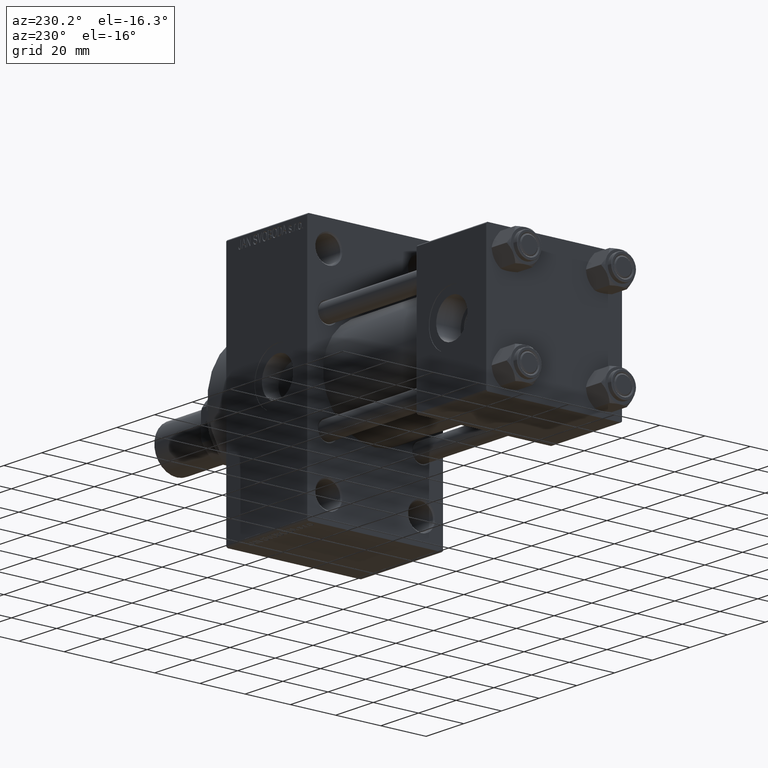
[diagram: clean part render]
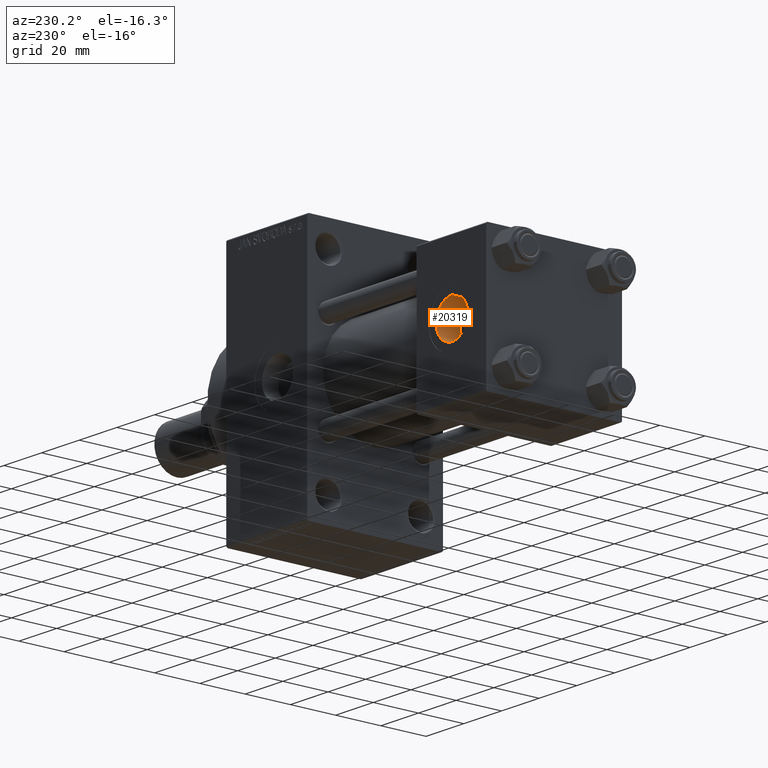
[diagram: same view with one face highlighted and labeled with its STEP entity id]
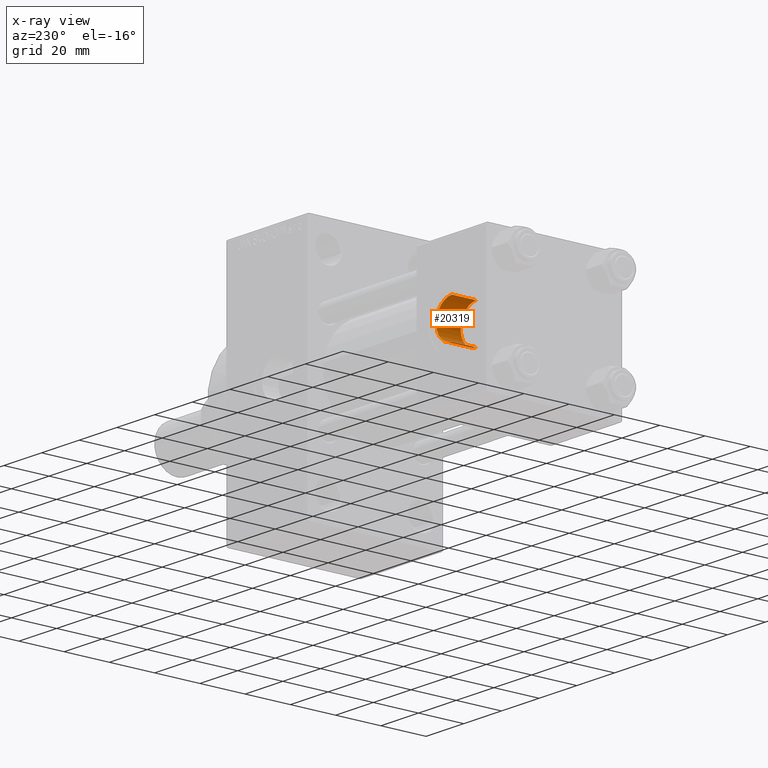
[diagram: x-ray of the same camera — body ghosted, the highlighted face saturated]
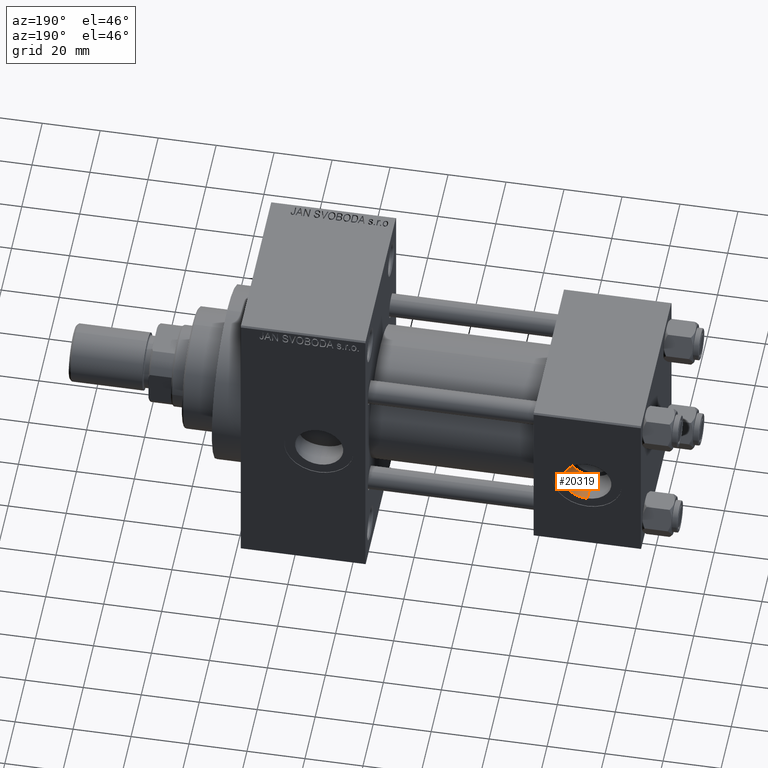
[diagram: same view with one face highlighted and labeled with its STEP entity id]
A machine part, auxiliary view. The second image highlights one B-rep face of the part: STEP entity #20319.
The next image is the same camera in x-ray: the body ghosted, the highlighted face saturated — about 0% of this face is hidden behind the body in this view.
A second angle (auxiliary view) of the same face is appended — the face is thin or edge-on in the first view.
In plain terms, the highlighted cylindrical surface (edge-blend (fillet) strip) has radius 8.33 mm, axis along (0, 1, 0).
Its self-contained STEP definition (entity closure, byte-faithful):
#854 = CARTESIAN_POINT ( 'NONE',  ( 18.50000000000000000, 18.99999999999999289, 0.000000000000000000 ) ) ;
#2065 = DIRECTION ( 'NONE',  ( -0.000000000000000000, 1.000000000000000000, -0.000000000000000000 ) ) ;
#2561 = EDGE_CURVE ( 'NONE', #10136, #22861, #43054, .T. ) ;
#3400 = AXIS2_PLACEMENT_3D ( 'NONE', #32015, #2065, #9106 ) ;
#5310 = CARTESIAN_POINT ( 'NONE',  ( 18.50000000000000000, 18.99999999999999289, 8.330000000000001847 ) ) ;
#5951 = VECTOR ( 'NONE', #9312, 1000.000000000000000 ) ;
#9106 = DIRECTION ( 'NONE',  ( 0.000000000000000000, 0.000000000000000000, 1.000000000000000000 ) ) ;
#9312 = DIRECTION ( 'NONE',  ( -0.000000000000000000, 1.000000000000000000, -0.000000000000000000 ) ) ;
#10136 = VERTEX_POINT ( 'NONE', #33276 ) ;
#11084 = EDGE_CURVE ( 'NONE', #19585, #22854, #16965, .T. ) ;
#11281 = CARTESIAN_POINT ( 'NONE',  ( 18.50000000000000000, 18.99999999999999289, 8.330000000000001847 ) ) ;
#13672 = DIRECTION ( 'NONE',  ( 0.000000000000000000, 0.000000000000000000, 1.000000000000000000 ) ) ;
#16965 = CIRCLE ( 'NONE', #23399, 8.330000000000001847 ) ;
#17396 = LINE ( 'NONE', #5310, #5951 ) ;
#18459 = CARTESIAN_POINT ( 'NONE',  ( 18.50000000000000000, 29.79999999999999361, 0.000000000000000000 ) ) ;
#18774 = EDGE_CURVE ( 'NONE', #22854, #22861, #29390, .T. ) ;
#19585 = VERTEX_POINT ( 'NONE', #11281 ) ;
#19919 = ORIENTED_EDGE ( 'NONE', *, *, #28766, .T. ) ;
#20319 = ADVANCED_FACE ( 'NONE', ( #40555 ), #32754, .F. ) ;
#22854 = VERTEX_POINT ( 'NONE', #33191 ) ;
#22861 = VERTEX_POINT ( 'NONE', #44759 ) ;
#23399 = AXIS2_PLACEMENT_3D ( 'NONE', #854, #41431, #48979 ) ;
#26166 = AXIS2_PLACEMENT_3D ( 'NONE', #18459, #36568, #13672 ) ;
#28743 = ORIENTED_EDGE ( 'NONE', *, *, #11084, .F. ) ;
#28766 = EDGE_CURVE ( 'NONE', #19585, #10136, #17396, .T. ) ;
#29390 = LINE ( 'NONE', #44744, #36249 ) ;
#32015 = CARTESIAN_POINT ( 'NONE',  ( 18.50000000000000000, 18.99999999999999289, 0.000000000000000000 ) ) ;
#32754 = CYLINDRICAL_SURFACE ( 'NONE', #3400, 8.330000000000001847 ) ;
#32884 = ORIENTED_EDGE ( 'NONE', *, *, #2561, .T. ) ;
#33191 = CARTESIAN_POINT ( 'NONE',  ( 18.50000000000000000, 18.99999999999999289, -8.330000000000001847 ) ) ;
#33276 = CARTESIAN_POINT ( 'NONE',  ( 18.50000000000000000, 29.79999999999999361, 8.330000000000001847 ) ) ;
#36249 = VECTOR ( 'NONE', #49762, 1000.000000000000000 ) ;
#36568 = DIRECTION ( 'NONE',  ( 0.000000000000000000, 1.000000000000000000, 0.000000000000000000 ) ) ;
#36906 = ORIENTED_EDGE ( 'NONE', *, *, #18774, .F. ) ;
#40555 = FACE_OUTER_BOUND ( 'NONE', #47787, .T. ) ;
#41431 = DIRECTION ( 'NONE',  ( 0.000000000000000000, 1.000000000000000000, 0.000000000000000000 ) ) ;
#43054 = CIRCLE ( 'NONE', #26166, 8.330000000000001847 ) ;
#44744 = CARTESIAN_POINT ( 'NONE',  ( 18.50000000000000000, 18.99999999999999289, -8.330000000000001847 ) ) ;
#44759 = CARTESIAN_POINT ( 'NONE',  ( 18.50000000000000000, 29.79999999999999361, -8.330000000000001847 ) ) ;
#47787 = EDGE_LOOP ( 'NONE', ( #36906, #28743, #19919, #32884 ) ) ;
#48979 = DIRECTION ( 'NONE',  ( 0.000000000000000000, 0.000000000000000000, 1.000000000000000000 ) ) ;
#49762 = DIRECTION ( 'NONE',  ( -0.000000000000000000, 1.000000000000000000, -0.000000000000000000 ) ) ;